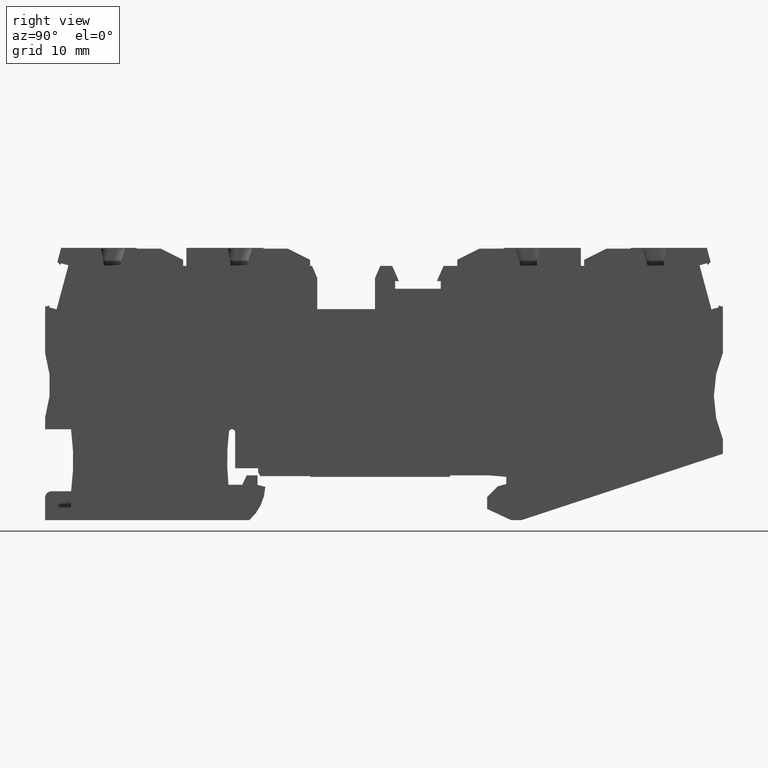
[diagram: clean part render]
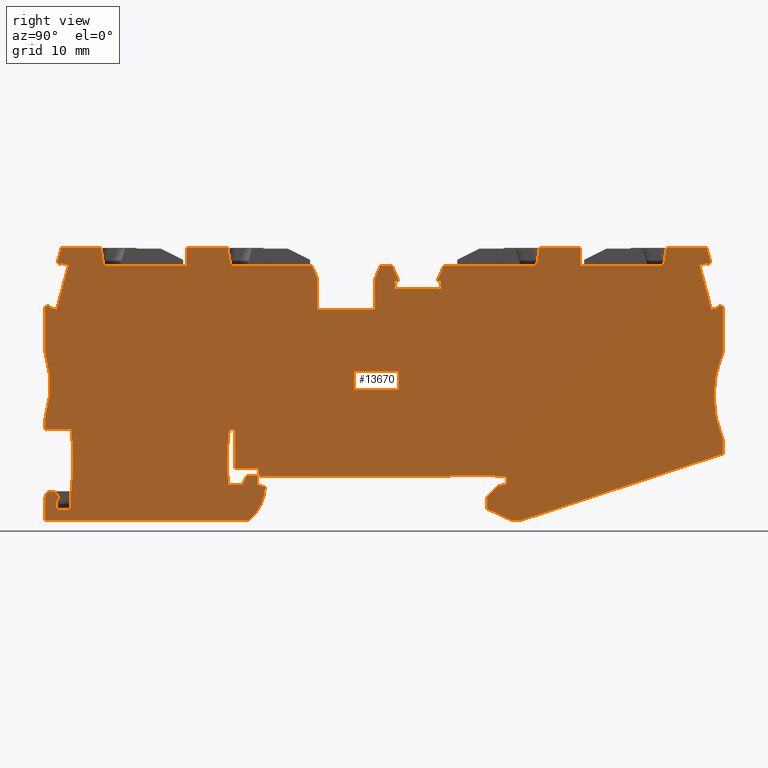
[diagram: same view with one face highlighted and labeled with its STEP entity id]
A machine part, right view. The second image highlights one B-rep face of the part: STEP entity #13670.
In plain terms, the highlighted planar face has unit normal (-1, -0, -0).
Its self-contained STEP definition (entity closure, byte-faithful):
#6800=CARTESIAN_POINT('',(45.521614229368,35.7907180576741,
6.68156854702083E-11));
#6810=DIRECTION('',(-4.80354817885423E-13,-1.17135291806246E-13,-1.));
#6820=DIRECTION('',(-0.992546151641485,-0.121869343403826,
4.91049527016466E-13));
#6830=AXIS2_PLACEMENT_3D('',#6800,#6810,#6820);
#6840=PLANE('',#6830);
#6850=CARTESIAN_POINT('',(51.1299785650664,1.55090701545296E-12,
6.83177050731461E-11));
#6860=DIRECTION('',(-0.121869343405148,0.992546151641322,
-5.77640933191103E-14));
#6870=VECTOR('',#6860,1.);
#6880=LINE('',#6850,#6870);
#6890=CARTESIAN_POINT('',(50.93354378688,1.59983288405392,
6.82245981724176E-11));
#6900=VERTEX_POINT('',#6890);
#6910=CARTESIAN_POINT('',(50.732074768668,3.24066636287605,
6.812910512352E-11));
#6920=VERTEX_POINT('',#6910);
#6930=EDGE_CURVE('',#6900,#6920,#6880,.T.);
#6940=ORIENTED_EDGE('',*,*,#6930,.F.);
#6950=CARTESIAN_POINT('',(48.2001887190505,1.66113356934495E-12,
6.97240957088467E-11));
#6960=DIRECTION('',(0.615661475325658,0.788010753606723,
-3.87844579519291E-13));
#6970=VECTOR('',#6960,1.);
#6980=LINE('',#6950,#6970);
#6990=CARTESIAN_POINT('',(52.0264251236404,4.89735926884905,
6.73137044322209E-11));
#7000=VERTEX_POINT('',#6990);
#7010=EDGE_CURVE('',#6920,#7000,#6980,.T.);
#7020=ORIENTED_EDGE('',*,*,#7010,.F.);
#7030=CARTESIAN_POINT('',(-3.04906916336963E-12,-16.1226809175486,
9.47502267218256E-11));
#7040=DIRECTION('',(0.927183854566809,0.374606593415861,
-4.88979768059962E-13));
#7050=VECTOR('',#7040,1.);
#7060=LINE('',#7030,#7050);
#7070=CARTESIAN_POINT('',(53.1431602927883,5.34854956449718,
6.67234981868649E-11));
#7080=VERTEX_POINT('',#7070);
#7090=EDGE_CURVE('',#7000,#7080,#7060,.T.);
#7100=ORIENTED_EDGE('',*,*,#7090,.F.);
#7110=CARTESIAN_POINT('',(53.7998796025323,1.45045817575454E-12,
6.7036069182966E-11));
#7120=DIRECTION('',(-0.121869343405148,0.992546151641322,
-5.77640933191103E-14));
#7130=VECTOR('',#7120,1.);
#7140=LINE('',#7110,#7130);
#7150=CARTESIAN_POINT('',(53.0212909493831,6.34109571613849,
6.66670307819943E-11));
#7160=VERTEX_POINT('',#7150);
#7170=EDGE_CURVE('',#7080,#7160,#7140,.T.);
#7180=ORIENTED_EDGE('',*,*,#7170,.F.);
#7190=CARTESIAN_POINT('',(-2.27358168479702E-12,4.4895514367401,
9.23358068702275E-11));
#7200=DIRECTION('',(-0.999390827019096,-0.0348994967025011,
4.83825773291268E-13));
#7210=VECTOR('',#7200,1.);
#7220=LINE('',#7190,#7210);
#7230=CARTESIAN_POINT('',(50.7279461954695,6.26101035262196,
6.77772901223321E-11));
#7240=VERTEX_POINT('',#7230);
#7250=EDGE_CURVE('',#7160,#7240,#7220,.T.);
#7260=ORIENTED_EDGE('',*,*,#7250,.F.);
#7270=CARTESIAN_POINT('',(-2.44127161328522E-12,0.0324017535047625,
9.28578963989975E-11));
#7280=DIRECTION('',(-0.992546151641322,-0.121869343405148,
4.9072870296802E-13));
#7290=VECTOR('',#7280,1.);
#7300=LINE('',#7270,#7290);
#7310=CARTESIAN_POINT('',(45.2550570978998,5.58902406790657,
7.04831620090312E-11));
#7320=VERTEX_POINT('',#7310);
#7330=EDGE_CURVE('',#7240,#7320,#7300,.T.);
#7340=ORIENTED_EDGE('',*,*,#7330,.F.);
#7350=CARTESIAN_POINT('',(45.279430966581,5.39051483757716,
7.04949018775302E-11));
#7360=DIRECTION('',(-0.121869343405148,0.992546151641322,
-5.77610917789631E-14));
#7370=VECTOR('',#7360,1.);
#7380=LINE('',#7350,#7370);
#7390=CARTESIAN_POINT('',(45.279430966581,5.39051483757716,
7.0494715267022E-11));
#7400=VERTEX_POINT('',#7390);
#7410=EDGE_CURVE('',#7400,#7320,#7380,.T.);
#7420=ORIENTED_EDGE('',*,*,#7410,.T.);
#7430=CARTESIAN_POINT('',(26.0240356247399,3.02624957551737,
8.00150319696711E-11));
#7440=DIRECTION('',(0.992546151641322,0.121869343405148,
-4.90728355265008E-13));
#7450=VECTOR('',#7440,1.);
#7460=LINE('',#7430,#7450);
#7470=CARTESIAN_POINT('',(26.0240356247399,3.02624957551737,
8.00148521046013E-11));
#7480=VERTEX_POINT('',#7470);
#7490=EDGE_CURVE('',#7480,#7400,#7460,.T.);
#7500=ORIENTED_EDGE('',*,*,#7490,.T.);
#7510=CARTESIAN_POINT('',(25.9996617560588,3.22475880584678,
8.00034797513152E-11));
#7520=DIRECTION('',(0.121869343405148,-0.992546151641322,
5.77610917789631E-14));
#7530=VECTOR('',#7520,1.);
#7540=LINE('',#7510,#7530);
#7550=CARTESIAN_POINT('',(26.0118486903992,3.12550419068349,
8.00090756602341E-11));
#7560=VERTEX_POINT('',#7550);
#7570=EDGE_CURVE('',#7560,#7480,#7540,.T.);
#7580=ORIENTED_EDGE('',*,*,#7570,.T.);
#7590=CARTESIAN_POINT('',(-2.44506213553791E-12,-0.0683492290388294,
9.28696978947375E-11));
#7600=DIRECTION('',(-0.992546151641329,-0.121869343405094,
4.90721764074116E-13));
#7610=VECTOR('',#7600,1.);
#7620=LINE('',#7590,#7610);
#7630=CARTESIAN_POINT('',(19.1632802440735,2.28460572118828,
8.33952380207367E-11));
#7640=VERTEX_POINT('',#7630);
#7650=EDGE_CURVE('',#7560,#7640,#7620,.T.);
#7660=ORIENTED_EDGE('',*,*,#7650,.F.);
#7670=CARTESIAN_POINT('',(20.8848541381608,2.68880973640947E-12,
8.28363094800264E-11));
#7680=DIRECTION('',(-0.601815023152031,0.798635510047307,
1.95356285934724E-13));
#7690=VECTOR('',#7680,1.);
#7700=LINE('',#7670,#7690);
#7710=CARTESIAN_POINT('',(18.8021912301823,2.76378702721663,
8.35123073683059E-11));
#7720=VERTEX_POINT('',#7710);
#7730=EDGE_CURVE('',#7640,#7720,#7700,.T.);
#7740=ORIENTED_EDGE('',*,*,#7730,.F.);
#7750=CARTESIAN_POINT('',(19.1415416067478,2.75439783070766E-12,
8.36731539460596E-11));
#7760=DIRECTION('',(-0.121869343405125,0.992546151641325,
-5.77640933191097E-14));
#7770=VECTOR('',#7760,1.);
#7780=LINE('',#7750,#7770);
#7790=CARTESIAN_POINT('',(18.7314601208357,3.33984568496959,
8.34787819689996E-11));
#7800=VERTEX_POINT('',#7790);
#7810=EDGE_CURVE('',#7720,#7800,#7780,.T.);
#7820=ORIENTED_EDGE('',*,*,#7810,.F.);
#7830=CARTESIAN_POINT('',(-2.40336639075756E-12,1.0399115789622,
9.27398814415948E-11));
#7840=DIRECTION('',(-0.992546151641322,-0.121869343405148,
4.9072870296802E-13));
#7850=VECTOR('',#7840,1.);
#7860=LINE('',#7830,#7850);
#7870=CARTESIAN_POINT('',(15.5553124355817,2.94986378607288,
8.50491173565662E-11));
#7880=VERTEX_POINT('',#7870);
#7890=EDGE_CURVE('',#7800,#7880,#7860,.T.);
#7900=ORIENTED_EDGE('',*,*,#7890,.F.);
#7910=CARTESIAN_POINT('',(15.9175101652776,2.87569454279639E-12,
8.52207897379762E-11));
#7920=DIRECTION('',(-0.121869343405148,0.992546151641322,
-5.77640933191103E-14));
#7930=VECTOR('',#7920,1.);
#7940=LINE('',#7910,#7930);
#7950=CARTESIAN_POINT('',(14.9459657185565,7.91259454427462,
8.47509459294817E-11));
#7960=VERTEX_POINT('',#7950);
#7970=EDGE_CURVE('',#7880,#7960,#7940,.T.);
#7980=ORIENTED_EDGE('',*,*,#7970,.F.);
#7990=CARTESIAN_POINT('',(14.5489472579,7.86384680691253,
8.49570799771339E-11));
#8000=DIRECTION('',(-5.11484905320667E-13,-6.28767212301405E-14,-1.));
#8010=DIRECTION('',(-1.,-2.08166817118832E-16,5.11484905320753E-13));
#8020=AXIS2_PLACEMENT_3D('',#7990,#8000,#8010);
#8030=CIRCLE('',#8020,0.4);
#8040=CARTESIAN_POINT('',(14.500199520538,8.26086526756894,
8.49334991726871E-11));
#8050=VERTEX_POINT('',#8040);
#8060=EDGE_CURVE('',#8050,#7960,#8030,.T.);
#8070=ORIENTED_EDGE('',*,*,#8060,.T.);
#8080=CARTESIAN_POINT('',(-2.19867818910811E-12,6.4804646364349,
9.21026006716203E-11));
#8090=DIRECTION('',(-0.992546151641322,-0.121869343405148,
4.9072870296802E-13));
#8100=VECTOR('',#8090,1.);
#8110=LINE('',#8080,#8100);
#8120=CARTESIAN_POINT('',(14.4509119909992,8.25481351989666,
8.49806809172556E-11));
#8130=VERTEX_POINT('',#8120);
#8140=EDGE_CURVE('',#8050,#8130,#8110,.T.);
#8150=ORIENTED_EDGE('',*,*,#8140,.F.);
#8160=CARTESIAN_POINT('',(14.4996597283612,7.85779505924013,
8.49807104045003E-11));
#8170=DIRECTION('',(5.11484905320667E-13,6.28767212301405E-14,1.));
#8180=DIRECTION('',(1.,2.08166817118832E-16,-5.11484905320753E-13));
#8190=AXIS2_PLACEMENT_3D('',#8160,#8170,#8180);
#8200=CIRCLE('',#8190,0.4);
#8210=CARTESIAN_POINT('',(14.0996636237191,7.85956035557312,
8.51851913781664E-11));
#8220=VERTEX_POINT('',#8210);
#8230=EDGE_CURVE('',#8130,#8220,#8200,.T.);
#8240=ORIENTED_EDGE('',*,*,#8230,.F.);
#8250=CARTESIAN_POINT('',(45.7868550382925,7.71971578669401,
6.99782859232668E-11));
#8260=DIRECTION('',(5.11484905320667E-13,6.28767212301405E-14,1.));
#8270=DIRECTION('',(0.992546151641322,0.121869343405148,
-5.15335119130525E-13));
#8280=AXIS2_PLACEMENT_3D('',#8250,#8260,#8270);
#8290=CIRCLE('',#8280,31.6874999999566);
#8300=CARTESIAN_POINT('',(14.9200659632053,0.554592728341579,
8.56347308077918E-11));
#8310=VERTEX_POINT('',#8300);
#8320=EDGE_CURVE('',#8220,#8310,#8290,.T.);
#8330=ORIENTED_EDGE('',*,*,#8320,.F.);
#8340=CARTESIAN_POINT('',(-2.49054840257132E-12,-1.27736101959366,
9.30113158436213E-11));
#8350=DIRECTION('',(0.992546151641319,0.121869343405174,
-4.90721764074116E-13));
#8360=VECTOR('',#8350,1.);
#8370=LINE('',#8340,#8360);
#8380=CARTESIAN_POINT('',(16.8281580770549,0.788876980702949,
8.46913567122137E-11));
#8390=VERTEX_POINT('',#8380);
#8400=EDGE_CURVE('',#8310,#8390,#8370,.T.);
#8410=ORIENTED_EDGE('',*,*,#8400,.F.);
#8420=CARTESIAN_POINT('',(16.5752548948046,2.8509484215089E-12,
8.49050517236794E-11));
#8430=DIRECTION('',(0.305282167327245,0.952261937867928,
-2.58091037603021E-13));
#8440=VECTOR('',#8430,1.);
#8450=LINE('',#8420,#8440);
#8460=CARTESIAN_POINT('',(17.2652556216151,2.15230858387961,
8.43217126931408E-11));
#8470=VERTEX_POINT('',#8460);
#8480=EDGE_CURVE('',#8390,#8470,#8450,.T.);
#8490=ORIENTED_EDGE('',*,*,#8480,.F.);
#8500=CARTESIAN_POINT('',(-2.44127161328531E-12,0.0324017535024244,
9.28578963989977E-11));
#8510=DIRECTION('',(0.992546151641319,0.121869343405174,
-4.90721764074116E-13));
#8520=VECTOR('',#8510,1.);
#8530=LINE('',#8500,#8520);
#8540=CARTESIAN_POINT('',(18.7540748490771,2.33511259898737,
8.35856189346993E-11));
#8550=VERTEX_POINT('',#8540);
#8560=EDGE_CURVE('',#8470,#8550,#8530,.T.);
#8570=ORIENTED_EDGE('',*,*,#8560,.F.);
#8580=CARTESIAN_POINT('',(19.0407906242024,2.75818835296042E-12,
8.37215175645568E-11));
#8590=DIRECTION('',(0.121869343405174,-0.992546151641319,
5.77640933191109E-14));
#8600=VECTOR('',#8590,1.);
#8610=LINE('',#8580,#8600);
#8620=CARTESIAN_POINT('',(18.9125049955038,1.04480260185427,
8.36607122560141E-11));
#8630=VERTEX_POINT('',#8620);
#8640=EDGE_CURVE('',#8550,#8630,#8610,.T.);
#8650=ORIENTED_EDGE('',*,*,#8640,.F.);
#8660=CARTESIAN_POINT('',(-2.30318206772121E-12,3.70278184023754,
9.24279653564981E-11));
#8670=DIRECTION('',(0.990268068741559,-0.139173100960152,
-4.59066600098781E-13));
#8680=VECTOR('',#8670,1.);
#8690=LINE('',#8660,#8680);
#8700=CARTESIAN_POINT('',(20.040226033671,0.886311745838699,
8.29560817931554E-11));
#8710=VERTEX_POINT('',#8700);
#8720=EDGE_CURVE('',#8630,#8710,#8690,.T.);
#8730=ORIENTED_EDGE('',*,*,#8720,.F.);
#8740=CARTESIAN_POINT('',(13.4567200165409,0.419997986218426,
8.63527660252752E-11));
#8750=DIRECTION('',(5.11484905320667E-13,6.28767212301405E-14,1.));
#8760=DIRECTION('',(1.,2.08166817118832E-16,-5.11484905320753E-13));
#8770=AXIS2_PLACEMENT_3D('',#8740,#8750,#8760);
#8780=CIRCLE('',#8770,6.6);
#8790=CARTESIAN_POINT('',(18.398189321048,-3.95514556715375,
8.41003737474612E-11));
#8800=VERTEX_POINT('',#8790);
#8810=EDGE_CURVE('',#8800,#8710,#8780,.T.);
#8820=ORIENTED_EDGE('',*,*,#8810,.T.);
#8830=CARTESIAN_POINT('',(-2.67628399295771E-12,-6.21415916435811,
9.35895891348969E-11));
#8840=DIRECTION('',(-0.992546151641253,-0.121869343405714,
4.90721764074116E-13));
#8850=VECTOR('',#8840,1.);
#8860=LINE('',#8830,#8850);
#8870=CARTESIAN_POINT('',(-9.72081938764651,-7.40772570449203,
9.83957172294179E-11));
#8880=VERTEX_POINT('',#8870);
#8890=EDGE_CURVE('',#8800,#8880,#8860,.T.);
#8900=ORIENTED_EDGE('',*,*,#8890,.F.);
#8910=CARTESIAN_POINT('',(-10.6303737355595,3.87449715640134E-12,
9.79646032120302E-11));
#8920=DIRECTION('',(-0.121869343404785,0.992546151641367,
-5.77640933191012E-14));
#8930=VECTOR('',#8920,1.);
#8940=LINE('',#8910,#8930);
#8950=CARTESIAN_POINT('',(-10.0986143522041,-4.33083263438116,
9.82166485401274E-11));
#8960=VERTEX_POINT('',#8950);
#8970=EDGE_CURVE('',#8880,#8960,#8940,.T.);
#8980=ORIENTED_EDGE('',*,*,#8970,.F.);
#8990=CARTESIAN_POINT('',(-9.20532281572712,-4.2211502253165,
-4.75520989127007E-12));
#9000=DIRECTION('',(5.11484905320667E-13,6.28767212301405E-14,1.));
#9010=DIRECTION('',(0.992546151641322,0.121869343405148,
-5.15335119130525E-13));
#9020=AXIS2_PLACEMENT_3D('',#8990,#9000,#9010);
#9030=CIRCLE('',#9020,0.899999999999821);
#9040=CARTESIAN_POINT('',(-8.52804268387466,-4.81384881903644,
9.74660670806273E-11));
#9050=VERTEX_POINT('',#9040);
#9060=EDGE_CURVE('',#9050,#8960,#9030,.T.);
#9070=ORIENTED_EDGE('',*,*,#9060,.T.);
#9080=CARTESIAN_POINT('',(-9.11910899737338,3.81763932260986E-12,
9.72391489345708E-11));
#9090=DIRECTION('',(0.121869343405115,-0.992546151641326,
5.77640933191095E-14));
#9100=VECTOR('',#9090,1.);
#9110=LINE('',#9080,#9100);
#9120=CARTESIAN_POINT('',(-8.41480417529468,-5.73610246189973,
9.75729636051133E-11));
#9130=VERTEX_POINT('',#9120);
#9140=EDGE_CURVE('',#9050,#9130,#9110,.T.);
#9150=ORIENTED_EDGE('',*,*,#9140,.F.);
#9160=CARTESIAN_POINT('',(-2.61942615916549E-12,-4.70289442615256,
9.34125666987907E-11));
#9170=DIRECTION('',(0.992546151641322,0.121869343405148,
-4.9072870296802E-13));
#9180=VECTOR('',#9170,1.);
#9190=LINE('',#9160,#9180);
#9200=CARTESIAN_POINT('',(-6.33045725684788,-5.48017684074892,
9.65424333288805E-11));
#9210=VERTEX_POINT('',#9200);
#9220=EDGE_CURVE('',#9130,#9210,#9190,.T.);
#9230=ORIENTED_EDGE('',*,*,#9220,.F.);
#9240=CARTESIAN_POINT('',(-7.00333836390997,3.73803835530168E-12,
9.62235129461262E-11));
#9250=DIRECTION('',(-0.121869343405148,0.992546151641322,
-5.77640933191103E-14));
#9260=VECTOR('',#9250,1.);
#9270=LINE('',#9240,#9260);
#9280=CARTESIAN_POINT('',(-6.62294368102031,-3.09806607680903,
9.53806876827917E-11));
#9290=VERTEX_POINT('',#9280);
#9300=EDGE_CURVE('',#9210,#9290,#9270,.T.);
#9310=ORIENTED_EDGE('',*,*,#9300,.F.);
#9320=CARTESIAN_POINT('',(-38.3066176594313,-2.60566433329596,
1.11555448060693E-10));
#9330=DIRECTION('',(5.11484905320667E-13,6.28767212301405E-14,1.));
#9340=DIRECTION('',(0.992546151641322,0.121869343405148,
-5.15335119130525E-13));
#9350=AXIS2_PLACEMENT_3D('',#9320,#9330,#9340);
#9360=CIRCLE('',#9350,31.6874999999566);
#9370=CARTESIAN_POINT('',(-7.68320696864437,5.5370854424646,
9.53800463352198E-11));
#9380=VERTEX_POINT('',#9370);
#9390=EDGE_CURVE('',#9290,#9380,#9360,.T.);
#9400=ORIENTED_EDGE('',*,*,#9390,.F.);
#9410=CARTESIAN_POINT('',(-2.19867818910809E-12,6.48046463643548,
9.21026006716202E-11));
#9420=DIRECTION('',(-0.992546151641322,-0.121869343405148,
4.9072870296802E-13));
#9430=VECTOR('',#9420,1.);
#9440=LINE('',#9410,#9430);
#9450=CARTESIAN_POINT('',(-11.2563731145709,5.0983558062039,
9.76678896536061E-11));
#9460=VERTEX_POINT('',#9450);
#9470=EDGE_CURVE('',#9380,#9460,#9440,.T.);
#9480=ORIENTED_EDGE('',*,*,#9470,.F.);
#9490=CARTESIAN_POINT('',(-10.6303737355799,3.87449715640211E-12,
9.796460321204E-11));
#9500=DIRECTION('',(-0.121869343405148,0.992546151641322,
-5.77640933191103E-14));
#9510=VECTOR('',#9500,1.);
#9520=LINE('',#9490,#9510);
#9530=CARTESIAN_POINT('',(-11.4513640640204,6.68642964884028,
9.75754671042949E-11));
#9540=VERTEX_POINT('',#9530);
#9550=EDGE_CURVE('',#9460,#9540,#9520,.T.);
#9560=ORIENTED_EDGE('',*,*,#9550,.F.);
#9570=CARTESIAN_POINT('',(-26.2022063583377,9.4090481693425,
1.04337258896055E-10));
#9580=DIRECTION('',(-2.48736047506293E-14,-2.91886266429657E-15,1.));
#9590=DIRECTION('',(-0.992546151641323,-0.121869343405144,
-2.50439205489866E-14));
#9600=AXIS2_PLACEMENT_3D('',#9570,#9580,#9590);
#9610=CIRCLE('',#9600,15.);
#9620=CARTESIAN_POINT('',(-12.5481881546689,15.6193450136094,
9.70556994593247E-11));
#9630=VERTEX_POINT('',#9620);
#9640=EDGE_CURVE('',#9540,#9630,#9610,.T.);
#9650=ORIENTED_EDGE('',*,*,#9640,.F.);
#9660=CARTESIAN_POINT('',(-10.3670130763944,-2.14490044392814,
-6.23862340092619E-11));
#9670=DIRECTION('',(0.12186934340511,-0.992546151641327,
1.2671346232575E-16));
#9680=VECTOR('',#9670,1.);
#9690=LINE('',#9660,#9680);
#9700=CARTESIAN_POINT('',(-13.3281422848194,21.971561647487,
9.66860582527586E-11));
#9710=VERTEX_POINT('',#9700);
#9720=EDGE_CURVE('',#9710,#9630,#9690,.T.);
#9730=ORIENTED_EDGE('',*,*,#9720,.T.);
#9740=CARTESIAN_POINT('',(-17.4688122688888,20.2986223814294,
-6.24971786231989E-11));
#9750=DIRECTION('',(0.927183854569503,0.374606593409191,
2.41534375207176E-14));
#9760=VECTOR('',#9750,1.);
#9770=LINE('',#9740,#9760);
#9780=CARTESIAN_POINT('',(-12.7148639936337,22.2193421608562,
9.63627884140387E-11));
#9790=VERTEX_POINT('',#9780);
#9800=EDGE_CURVE('',#9710,#9790,#9770,.T.);
#9810=ORIENTED_EDGE('',*,*,#9800,.F.);
#9820=CARTESIAN_POINT('',(-16.1390349862198,-2.14490044392793,
-6.25297739988785E-11));
#9830=DIRECTION('',(-0.13917310096079,-0.990268068741469,
-6.3582858958012E-15));
#9840=VECTOR('',#9830,1.);
#9850=LINE('',#9820,#9840);
#9860=CARTESIAN_POINT('',(-12.752761889682,21.9496846187737,
9.64125641641011E-11));
#9870=VERTEX_POINT('',#9860);
#9880=EDGE_CURVE('',#9790,#9870,#9850,.T.);
#9890=ORIENTED_EDGE('',*,*,#9880,.F.);
#9900=CARTESIAN_POINT('',(-17.4688122688887,22.6124822755671,
-6.24904088011198E-11));
#9910=DIRECTION('',(0.990268068741538,-0.139173100960301,
2.42190292353103E-14));
#9920=VECTOR('',#9910,1.);
#9930=LINE('',#9900,#9920);
#9940=CARTESIAN_POINT('',(-11.6931750561293,21.8007694007463,
9.59213710485714E-11));
#9950=VERTEX_POINT('',#9940);
#9960=EDGE_CURVE('',#9870,#9950,#9930,.T.);
#9970=ORIENTED_EDGE('',*,*,#9960,.F.);
#9980=CARTESIAN_POINT('',(-15.0585194836129,-2.14490044392797,
-6.25029034868729E-11));
#9990=DIRECTION('',(-0.139173100960276,-0.990268068741541,
-6.35828589578859E-15));
#10000=VECTOR('',#9990,1.);
#10010=LINE('',#9980,#10000);
#10020=CARTESIAN_POINT('',(-10.8129051925556,28.0642149355368,
9.47652094331326E-11));
#10030=VERTEX_POINT('',#10020);
#10040=EDGE_CURVE('',#10030,#9950,#10010,.T.);
#10050=ORIENTED_EDGE('',*,*,#10040,.T.);
#10060=CARTESIAN_POINT('',(-17.4688122688885,28.9996416717454,
-6.24717214411754E-11));
#10070=DIRECTION('',(-0.990268068741586,0.139173100959957,
-2.42190292353126E-14));
#10080=VECTOR('',#10070,1.);
#10090=LINE('',#10060,#10080);
#10100=CARTESIAN_POINT('',(-11.8724920261092,28.213130153564,
9.52564025486461E-11));
#10110=VERTEX_POINT('',#10100);
#10120=EDGE_CURVE('',#10030,#10110,#10090,.T.);
#10130=ORIENTED_EDGE('',*,*,#10120,.F.);
#10140=CARTESIAN_POINT('',(-16.1390349861828,-2.14490044392793,
-6.25297739988776E-11));
#10150=DIRECTION('',(-0.139173100959469,-0.990268068741655,
-6.35828589576885E-15));
#10160=VECTOR('',#10150,1.);
#10170=LINE('',#10140,#10160);
#10180=CARTESIAN_POINT('',(-11.9103899221575,27.9434726114791,
9.53059683943045E-11));
#10190=VERTEX_POINT('',#10180);
#10200=EDGE_CURVE('',#10110,#10190,#10170,.T.);
#10210=ORIENTED_EDGE('',*,*,#10200,.F.);
#10220=CARTESIAN_POINT('',(-17.4688122688883,32.2861880970218,
-6.24621057619331E-11));
#10230=DIRECTION('',(0.78801075360754,-0.615661475324612,
1.77951516249098E-14));
#10240=VECTOR('',#10230,1.);
#10250=LINE('',#10220,#10240);
#10260=CARTESIAN_POINT('',(-12.3926456361201,28.3202520690979,
9.54935458988581E-11));
#10270=VERTEX_POINT('',#10260);
#10280=EDGE_CURVE('',#10270,#10190,#10250,.T.);
#10290=ORIENTED_EDGE('',*,*,#10280,.T.);
#10300=CARTESIAN_POINT('',(-16.6742435996499,-2.14490044392791,
-6.25430836917409E-11));
#10310=DIRECTION('',(-0.139173100960494,-0.990268068741511,
-6.35828589579393E-15));
#10320=VECTOR('',#10310,1.);
#10330=LINE('',#10300,#10320);
#10340=CARTESIAN_POINT('',(-12.1098519226199,30.3324338958117,
9.51218046987962E-11));
#10350=VERTEX_POINT('',#10340);
#10360=EDGE_CURVE('',#10350,#10270,#10330,.T.);
#10370=ORIENTED_EDGE('',*,*,#10360,.T.);
#10380=CARTESIAN_POINT('',(-17.4688122688884,29.6744363027993,
-6.24695251026196E-11));
#10390=DIRECTION('',(-0.992546151641327,-0.12186934340511,
-2.50394313100733E-14));
#10400=VECTOR('',#10390,1.);
#10410=LINE('',#10380,#10400);
#10420=CARTESIAN_POINT('',(-6.61390145917418,31.0072517602099,
9.240463543848E-11));
#10430=VERTEX_POINT('',#10420);
#10440=EDGE_CURVE('',#10430,#10350,#10410,.T.);
#10450=ORIENTED_EDGE('',*,*,#10440,.T.);
#10460=CARTESIAN_POINT('',(2.66133166147859,-2.14490044392863,
-6.20620200433489E-11));
#10470=DIRECTION('',(0.269431410275815,-0.96301958191762,
3.88270937713592E-15));
#10480=VECTOR('',#10470,1.);
#10490=LINE('',#10460,#10480);
#10500=CARTESIAN_POINT('',(-5.93260852348172,28.5721294505195,
9.23627265369063E-11));
#10510=VERTEX_POINT('',#10500);
#10520=EDGE_CURVE('',#10430,#10510,#10490,.T.);
#10530=ORIENTED_EDGE('',*,*,#10520,.F.);
#10540=CARTESIAN_POINT('',(-1.34012489885523E-12,29.3005621830836,
8.94295618864462E-11));
#10550=DIRECTION('',(0.992546151641327,0.12186934340511,
-4.9072870296802E-13));
#10560=VECTOR('',#10550,1.);
#10570=LINE('',#10540,#10560);
#10580=CARTESIAN_POINT('',(5.43719083080263,29.968165271789,
8.67412499526372E-11));
#10590=VERTEX_POINT('',#10580);
#10600=EDGE_CURVE('',#10510,#10590,#10570,.T.);
#10610=ORIENTED_EDGE('',*,*,#10600,.F.);
#10620=CARTESIAN_POINT('',(9.11681884476455,3.13155479480822E-12,
8.84853339859079E-11));
#10630=DIRECTION('',(0.121869343405148,-0.992546151641322,
5.77640933191103E-14));
#10640=VECTOR('',#10630,1.);
#10650=LINE('',#10620,#10640);
#10660=CARTESIAN_POINT('',(5.13251747228987,32.4495306508914,
8.65969360513609E-11));
#10670=VERTEX_POINT('',#10660);
#10680=EDGE_CURVE('',#10670,#10590,#10650,.T.);
#10690=ORIENTED_EDGE('',*,*,#10680,.T.);
#10700=CARTESIAN_POINT('',(-1.24536184253599E-12,31.8193367467299,
8.91345244929393E-11));
#10710=DIRECTION('',(-0.992546151641327,-0.12186934340511,
4.9072870296802E-13));
#10720=VECTOR('',#10710,1.);
#10730=LINE('',#10700,#10720);
#10740=CARTESIAN_POINT('',(10.8549108097131,33.1521522041404,
8.37677047297717E-11));
#10750=VERTEX_POINT('',#10740);
#10760=EDGE_CURVE('',#10750,#10670,#10730,.T.);
#10770=ORIENTED_EDGE('',*,*,#10760,.T.);
#10780=CARTESIAN_POINT('',(20.1301439303659,1.96864872753817E-12,
-7.06895637511002E-11));
#10790=DIRECTION('',(0.269431410275815,-0.96301958191762,
3.88270937713592E-15));
#10800=VECTOR('',#10790,1.);
#10810=LINE('',#10780,#10800);
#10820=CARTESIAN_POINT('',(11.5362037454055,30.7170298944502,
8.37260122498929E-11));
#10830=VERTEX_POINT('',#10820);
#10840=EDGE_CURVE('',#10750,#10830,#10810,.T.);
#10850=ORIENTED_EDGE('',*,*,#10840,.F.);
#10860=CARTESIAN_POINT('',(-1.26037069472658E-12,29.3005621830843,
-7.11044381656617E-11));
#10870=DIRECTION('',(0.992546151641327,0.12186934340511,
2.50394313100733E-14));
#10880=VECTOR('',#10870,1.);
#10890=LINE('',#10860,#10880);
#10900=CARTESIAN_POINT('',(22.7387593504494,32.0925307654053,
7.81872011511833E-11));
#10910=VERTEX_POINT('',#10900);
#10920=EDGE_CURVE('',#10830,#10910,#10890,.T.);
#10930=ORIENTED_EDGE('',*,*,#10920,.F.);
#10940=CARTESIAN_POINT('',(41.2011308712341,1.17794860149569E-12,
-7.01655655241434E-11));
#10950=DIRECTION('',(0.498657173381242,-0.866799298243504,
9.86466764618313E-15));
#10960=VECTOR('',#10950,1.);
#10970=LINE('',#10940,#10960);
#10980=CARTESIAN_POINT('',(23.6590813655665,30.4927653966404,
7.79327225748184E-11));
#10990=VERTEX_POINT('',#10980);
#11000=EDGE_CURVE('',#10910,#10990,#10970,.T.);
#11010=ORIENTED_EDGE('',*,*,#11000,.F.);
#11020=CARTESIAN_POINT('',(27.4031221755078,1.69572630433719E-12,
-7.05089196732096E-11));
#11030=DIRECTION('',(-0.121869343405139,0.992546151641324,
-1.26713462326487E-16));
#11040=VECTOR('',#11030,1.);
#11050=LINE('',#11020,#11040);
#11060=CARTESIAN_POINT('',(24.1831195422084,26.2248169445842,
7.81811081760905E-11));
#11070=VERTEX_POINT('',#11060);
#11080=EDGE_CURVE('',#11070,#10990,#11050,.T.);
#11090=ORIENTED_EDGE('',*,*,#11080,.T.);
#11100=CARTESIAN_POINT('',(-1.50142564029018E-12,23.2555032303317,
-7.11203482615204E-11));
#11110=DIRECTION('',(-0.992546151641324,-0.121869343405136,
-2.50403622964061E-14));
#11120=VECTOR('',#11110,1.);
#11130=LINE('',#11100,#11120);
#11140=CARTESIAN_POINT('',(32.1234887553388,27.1997716918252,
7.42552783856282E-11));
#11150=VERTEX_POINT('',#11140);
#11160=EDGE_CURVE('',#11150,#11070,#11130,.T.);
#11170=ORIENTED_EDGE('',*,*,#11160,.T.);
#11180=CARTESIAN_POINT('',(35.4632007791785,1.38616208918197E-12,
-7.030648135363E-11));
#11190=DIRECTION('',(0.121869343405142,-0.992546151641324,
1.25369758141894E-16));
#11200=VECTOR('',#11190,1.);
#11210=LINE('',#11180,#11200);
#11220=CARTESIAN_POINT('',(31.5994505786969,31.4677201438811,
7.40068927843561E-11));
#11230=VERTEX_POINT('',#11220);
#11240=EDGE_CURVE('',#11230,#11150,#11210,.T.);
#11250=ORIENTED_EDGE('',*,*,#11240,.T.);
#11260=CARTESIAN_POINT('',(22.6289845756428,1.86777296000974E-12,
-7.06256456411836E-11));
#11270=DIRECTION('',(-0.274147194873179,-0.961687743263461,
-9.63283387656871E-15));
#11280=VECTOR('',#11270,1.);
#11290=LINE('',#11260,#11280);
#11300=CARTESIAN_POINT('',(32.1054168262364,33.242611690697,
7.35556797581958E-11));
#11310=VERTEX_POINT('',#11300);
#11320=EDGE_CURVE('',#11310,#11230,#11290,.T.);
#11330=ORIENTED_EDGE('',*,*,#11320,.T.);
#11340=CARTESIAN_POINT('',(-1.28168697679957E-12,29.3005621830791,
-7.11026618088223E-11));
#11350=DIRECTION('',(-0.992546151641309,-0.121869343405257,
-2.50403622964062E-14));
#11360=VECTOR('',#11350,1.);
#11370=LINE('',#11340,#11360);
#11380=CARTESIAN_POINT('',(33.7648010461207,33.4463584535049,
7.27360079337511E-11));
#11390=VERTEX_POINT('',#11380);
#11400=EDGE_CURVE('',#11390,#11310,#11370,.T.);
#11410=ORIENTED_EDGE('',*,*,#11400,.T.);
#11420=CARTESIAN_POINT('',(53.6422195780373,7.0398462421914E-13,
-6.98544012662022E-11));
#11430=DIRECTION('',(0.510892985900211,-0.859644320028911,
1.01890289076771E-14));
#11440=VECTOR('',#11430,1.);
#11450=LINE('',#11420,#11440);
#11460=CARTESIAN_POINT('',(34.9394936524405,31.4697843867785,
7.24036531729968E-11));
#11470=VERTEX_POINT('',#11460);
#11480=EDGE_CURVE('',#11390,#11470,#11450,.T.);
#11490=ORIENTED_EDGE('',*,*,#11480,.F.);
#11500=CARTESIAN_POINT('',(-1.35416601798108E-12,27.179754000494,
-7.11088668059772E-11));
#11510=DIRECTION('',(-0.992546151641324,-0.121869343405136,
-2.50403622964061E-14));
#11520=VECTOR('',#11510,1.);
#11530=LINE('',#11500,#11520);
#11540=CARTESIAN_POINT('',(34.4155300604774,31.4054497472102,
7.26627044400171E-11));
#11550=VERTEX_POINT('',#11540);
#11560=EDGE_CURVE('',#11470,#11550,#11530,.T.);
#11570=ORIENTED_EDGE('',*,*,#11560,.F.);
#11580=CARTESIAN_POINT('',(38.2716344176462,1.28077410530868E-12,
-7.02366405696547E-11));
#11590=DIRECTION('',(0.121869343405136,-0.992546151641324,
1.25369758141743E-16));
#11600=VECTOR('',#11590,1.);
#11610=LINE('',#11580,#11600);
#11620=CARTESIAN_POINT('',(34.5459302579208,30.3434253649544,
7.27241885043869E-11));
#11630=VERTEX_POINT('',#11620);
#11640=EDGE_CURVE('',#11550,#11630,#11610,.T.);
#11650=ORIENTED_EDGE('',*,*,#11640,.F.);
#11660=CARTESIAN_POINT('',(-1.39461988084896E-12,26.1017184872554,
-7.11120208900417E-11));
#11670=DIRECTION('',(0.992546151641331,0.121869343405079,
2.50403622964061E-14));
#11680=VECTOR('',#11670,1.);
#11690=LINE('',#11660,#11680);
#11700=CARTESIAN_POINT('',(40.8237846670523,31.1142489619915,
6.96203293263025E-11));
#11710=VERTEX_POINT('',#11700);
#11720=EDGE_CURVE('',#11630,#11710,#11690,.T.);
#11730=ORIENTED_EDGE('',*,*,#11720,.F.);
#11740=CARTESIAN_POINT('',(44.6441340636736,1.04164262620617E-12,
-7.0078167759379E-11));
#11750=DIRECTION('',(-0.121869343405136,0.992546151641324,
-1.25369758141743E-16));
#11760=VECTOR('',#11750,1.);
#11770=LINE('',#11740,#11760);
#11780=CARTESIAN_POINT('',(40.6933844696088,32.1762733442477,
6.95585217464511E-11));
#11790=VERTEX_POINT('',#11780);
#11800=EDGE_CURVE('',#11710,#11790,#11770,.T.);
#11810=ORIENTED_EDGE('',*,*,#11800,.F.);
#11820=CARTESIAN_POINT('',(-1.35416601798108E-12,27.179754000494,
-7.11088668059772E-11));
#11830=DIRECTION('',(-0.992546151641324,-0.121869343405136,
-2.50403622964061E-14));
#11840=VECTOR('',#11830,1.);
#11850=LINE('',#11820,#11840);
#11860=CARTESIAN_POINT('',(40.1694208776443,32.1119387046792,
6.98179405492692E-11));
#11870=VERTEX_POINT('',#11860);
#11880=EDGE_CURVE('',#11790,#11870,#11850,.T.);
#11890=ORIENTED_EDGE('',*,*,#11880,.F.);
#11900=CARTESIAN_POINT('',(30.5211237682835,1.57161618900142E-12,
-7.04293820795647E-11));
#11910=DIRECTION('',(0.287750497361325,0.957705409438786,
9.95947716779486E-15));
#11920=VECTOR('',#11910,1.);
#11930=LINE('',#11900,#11920);
#11940=CARTESIAN_POINT('',(40.8310435482309,34.3139839363598,
6.92421227350066E-11));
#11950=VERTEX_POINT('',#11940);
#11960=EDGE_CURVE('',#11870,#11950,#11930,.T.);
#11970=ORIENTED_EDGE('',*,*,#11960,.F.);
#11980=CARTESIAN_POINT('',(-1.27458154944178E-12,29.3005621830843,
-7.11026618088223E-11));
#11990=DIRECTION('',(-0.992546151641327,-0.12186934340511,
-2.50403622964061E-14));
#12000=VECTOR('',#11990,1.);
#12010=LINE('',#11980,#12000);
#12020=CARTESIAN_POINT('',(53.6304524096651,35.8855537332273,
6.29100439665823E-11));
#12030=VERTEX_POINT('',#12020);
#12040=EDGE_CURVE('',#12030,#11950,#12010,.T.);
#12050=ORIENTED_EDGE('',*,*,#12040,.T.);
#12060=CARTESIAN_POINT('',(52.7229110755826,4.00188860253601,
-6.98202130538966E-11));
#12070=DIRECTION('',(-0.0284526231580444,-0.99959514216278,
-3.63512319679408E-15));
#12080=VECTOR('',#12070,1.);
#12090=LINE('',#12060,#12080);
#12100=CARTESIAN_POINT('',(53.7023986283322,38.41316218174,
6.25797199374616E-11));
#12110=VERTEX_POINT('',#12100);
#12120=EDGE_CURVE('',#12110,#12030,#12090,.T.);
#12130=ORIENTED_EDGE('',*,*,#12120,.T.);
#12140=CARTESIAN_POINT('',(-0.0992546151653785,31.8071498123857,
8.91842624844429E-11));
#12150=DIRECTION('',(0.99254615164132,0.121869343405168,
-4.90721764074116E-13));
#12160=VECTOR('',#12150,1.);
#12170=LINE('',#12140,#12160);
#12180=CARTESIAN_POINT('',(59.4247919657564,39.1157837349895,
5.97486667486119E-11));
#12190=VERTEX_POINT('',#12180);
#12200=EDGE_CURVE('',#12110,#12190,#12170,.T.);
#12210=ORIENTED_EDGE('',*,*,#12200,.F.);
#12220=CARTESIAN_POINT('',(64.2283544797216,-0.00609346716927355,
6.20645137065402E-11));
#12230=DIRECTION('',(-0.121869343405168,0.99254615164132,
-5.77640933191108E-14));
#12240=VECTOR('',#12230,1.);
#12250=LINE('',#12220,#12240);
#12260=CARTESIAN_POINT('',(59.729465324269,36.6344183558885,
5.98930832739504E-11));
#12270=VERTEX_POINT('',#12260);
#12280=EDGE_CURVE('',#12270,#12190,#12250,.T.);
#12290=ORIENTED_EDGE('',*,*,#12280,.T.);
#12300=CARTESIAN_POINT('',(-0.0992546151654733,29.2883752487444,
8.94792998779493E-11));
#12310=DIRECTION('',(0.992546151641327,0.12186934340511,
-4.9072870296802E-13));
#12320=VECTOR('',#12310,1.);
#12330=LINE('',#12300,#12320);
#12340=CARTESIAN_POINT('',(71.0992646785524,38.0304541771579,
5.4267569515658E-11));
#12350=VERTEX_POINT('',#12340);
#12360=EDGE_CURVE('',#12270,#12350,#12330,.T.);
#12370=ORIENTED_EDGE('',*,*,#12360,.F.);
#12380=CARTESIAN_POINT('',(70.1917233444699,6.14678904646662,
-6.9260290241251E-11));
#12390=DIRECTION('',(-0.0284526231580444,-0.99959514216278,
-3.63512319679408E-15));
#12400=VECTOR('',#12390,1.);
#12410=LINE('',#12380,#12400);
#12420=CARTESIAN_POINT('',(71.1712108972195,40.5580626256707,
5.39369343790589E-11));
#12430=VERTEX_POINT('',#12420);
#12440=EDGE_CURVE('',#12430,#12350,#12410,.T.);
#12450=ORIENTED_EDGE('',*,*,#12440,.T.);
#12460=CARTESIAN_POINT('',(82.1253763220979,41.9030650174223,
-6.89111646531779E-11));
#12470=DIRECTION('',(0.99254615164132,0.121869343405168,
2.50286166997453E-14));
#12480=VECTOR('',#12470,1.);
#12490=LINE('',#12460,#12480);
#12500=CARTESIAN_POINT('',(76.7664159758293,41.2450674244096,
5.11803885361175E-11));
#12510=VERTEX_POINT('',#12500);
#12520=EDGE_CURVE('',#12430,#12510,#12490,.T.);
#12530=ORIENTED_EDGE('',*,*,#12520,.F.);
#12540=CARTESIAN_POINT('',(89.0522040005947,10.8366750004898,
-6.88302024510314E-11));
#12550=DIRECTION('',(0.374606593416298,-0.927183854566633,
6.59579020589816E-15));
#12560=VECTOR('',#12550,1.);
#12570=LINE('',#12540,#12560);
#12580=CARTESIAN_POINT('',(77.5276003492661,39.3610699886925,
5.10352532831657E-11));
#12590=VERTEX_POINT('',#12580);
#12600=EDGE_CURVE('',#12510,#12590,#12570,.T.);
#12610=ORIENTED_EDGE('',*,*,#12600,.F.);
#12620=CARTESIAN_POINT('',(81.4935363772037,44.4372366214501,
-6.89196695501589E-11));
#12630=DIRECTION('',(-0.615661475326719,-0.788010753605894,
-1.76115902885362E-14));
#12640=VECTOR('',#12630,1.);
#12650=LINE('',#12620,#12640);
#12660=CARTESIAN_POINT('',(77.1508208916461,38.8788142747309,
5.12726107858981E-11));
#12670=VERTEX_POINT('',#12660);
#12680=EDGE_CURVE('',#12590,#12670,#12650,.T.);
#12690=ORIENTED_EDGE('',*,*,#12680,.F.);
#12700=CARTESIAN_POINT('',(88.5328933702816,10.7071963181785,
-6.88434901721391E-11));
#12710=DIRECTION('',(0.374606593415338,-0.927183854567021,
6.59579020587315E-15));
#12720=VECTOR('',#12710,1.);
#12730=LINE('',#12700,#12720);
#12740=CARTESIAN_POINT('',(77.0488126613318,39.1312935045226,
5.12935865988079E-11));
#12750=VERTEX_POINT('',#12740);
#12760=EDGE_CURVE('',#12750,#12670,#12730,.T.);
#12770=ORIENTED_EDGE('',*,*,#12760,.T.);
#12780=CARTESIAN_POINT('',(82.2886239183829,41.2483146707968,
-6.89092466688851E-11));
#12790=DIRECTION('',(0.927183854566836,0.374606593415795,
2.41441940387486E-14));
#12800=VECTOR('',#12790,1.);
#12810=LINE('',#12780,#12800);
#12820=CARTESIAN_POINT('',(76.0567259369451,38.7304644495676,
5.18155968251579E-11));
#12830=VERTEX_POINT('',#12820);
#12840=EDGE_CURVE('',#12830,#12750,#12810,.T.);
#12850=ORIENTED_EDGE('',*,*,#12840,.T.);
#12860=CARTESIAN_POINT('',(87.4844737959631,10.445795959572,
-6.88703163260713E-11));
#12870=DIRECTION('',(0.374606593416094,-0.927183854566715,
6.59579020589281E-15));
#12880=VECTOR('',#12870,1.);
#12890=LINE('',#12860,#12880);
#12900=CARTESIAN_POINT('',(78.426112640302,32.8660265694329,
5.13651175449927E-11));
#12910=VERTEX_POINT('',#12900);
#12920=EDGE_CURVE('',#12830,#12910,#12890,.T.);
#12930=ORIENTED_EDGE('',*,*,#12920,.F.);
#12940=CARTESIAN_POINT('',(83.8338176270037,35.0508812056414,
-6.8888990571618E-11));
#12950=DIRECTION('',(-0.927183854566705,-0.374606593416117,
-2.41441940387461E-14));
#12960=VECTOR('',#12950,1.);
#12970=LINE('',#12940,#12960);
#12980=CARTESIAN_POINT('',(79.4181993646876,33.2668556243878,
5.08419359095471E-11));
#12990=VERTEX_POINT('',#12980);
#13000=EDGE_CURVE('',#12990,#12910,#12970,.T.);
#13010=ORIENTED_EDGE('',*,*,#13000,.T.);
#13020=CARTESIAN_POINT('',(88.5328933703174,10.7071963181875,
-6.88434901721382E-11));
#13030=DIRECTION('',(0.374606593416575,-0.927183854566521,
6.59579020590538E-15));
#13040=VECTOR('',#13030,1.);
#13050=LINE('',#13020,#13040);
#13060=CARTESIAN_POINT('',(79.3161911343737,33.5193348541774,
5.08613302085433E-11));
#13070=VERTEX_POINT('',#13060);
#13080=EDGE_CURVE('',#13070,#12990,#13050,.T.);
#13090=ORIENTED_EDGE('',*,*,#13080,.T.);
#13100=CARTESIAN_POINT('',(84.3935909987456,32.8057528391582,
-6.88816524470824E-11));
#13110=DIRECTION('',(-0.990268068742578,0.139173100952904,
-2.42073804944462E-14));
#13120=VECTOR('',#13110,1.);
#13130=LINE('',#13100,#13120);
#13140=CARTESIAN_POINT('',(79.971195970816,33.4272799277346,
5.05578932603881E-11));
#13150=VERTEX_POINT('',#13140);
#13160=EDGE_CURVE('',#13150,#13070,#13130,.T.);
#13170=ORIENTED_EDGE('',*,*,#13160,.T.);
#13180=CARTESIAN_POINT('',(83.8121891997317,2.14490044393083,
-6.89786231045951E-11));
#13190=DIRECTION('',(-0.12186934340511,0.992546151641328,
-1.25369758141076E-16));
#13200=VECTOR('',#13190,1.);
#13210=LINE('',#13180,#13200);
#13220=CARTESIAN_POINT('',(80.7511501013407,27.0750632908097,
4.41842048583439E-11));
#13230=VERTEX_POINT('',#13220);
#13240=EDGE_CURVE('',#13230,#13150,#13210,.T.);
#13250=ORIENTED_EDGE('',*,*,#13240,.T.);
#13260=CARTESIAN_POINT('',(95.1276197746272,22.7952128573162,
4.45273391520407E-11));
#13270=DIRECTION('',(-2.47610274017394E-14,-3.00054079505067E-15,1.));
#13280=DIRECTION('',(0.992546151641327,0.12186934340511,
2.49421363947495E-14));
#13290=AXIS2_PLACEMENT_3D('',#13260,#13270,#13280);
#13300=CIRCLE('',#13290,15.);
#13310=CARTESIAN_POINT('',(82.2135822231573,15.1645094743228,
4.41846780775672E-11));
#13320=VERTEX_POINT('',#13310);
#13330=EDGE_CURVE('',#13230,#13320,#13300,.T.);
#13340=ORIENTED_EDGE('',*,*,#13330,.F.);
#13350=CARTESIAN_POINT('',(84.0755498602693,3.11406238695417E-13,
5.25028018232123E-11));
#13360=DIRECTION('',(-0.12186934340511,0.992546151641327,
-5.77571544252054E-14));
#13370=VECTOR('',#13360,1.);
#13380=LINE('',#13350,#13370);
#13390=CARTESIAN_POINT('',(82.4574372953298,13.1784692883304,
5.17359348271384E-11));
#13400=VERTEX_POINT('',#13390);
#13410=EDGE_CURVE('',#13400,#13320,#13380,.T.);
#13420=ORIENTED_EDGE('',*,*,#13410,.T.);
#13430=CARTESIAN_POINT('',(-3.40850950321008E-12,-25.6765009430286,
9.58693162183747E-11));
#13440=DIRECTION('',(0.904601039469285,0.426259263114703,
-4.84193663180671E-13));
#13450=VECTOR('',#13440,1.);
#13460=LINE('',#13430,#13450);
#13470=CARTESIAN_POINT('',(55.8575904551349,0.644290552788068,
6.59728149731703E-11));
#13480=VERTEX_POINT('',#13470);
#13490=EDGE_CURVE('',#13480,#13400,#13460,.T.);
#13500=ORIENTED_EDGE('',*,*,#13490,.T.);
#13510=CARTESIAN_POINT('',(-2.67628399295792E-12,-6.21415916436367,
9.35895891348976E-11));
#13520=DIRECTION('',(-0.992546151641272,-0.121869343405557,
4.9072870296802E-13));
#13530=VECTOR('',#13520,1.);
#13540=LINE('',#13510,#13530);
#13550=CARTESIAN_POINT('',(54.4182978727012,0.467567645042534,
6.66844213614488E-11));
#13560=VERTEX_POINT('',#13550);
#13570=EDGE_CURVE('',#13480,#13560,#13540,.T.);
#13580=ORIENTED_EDGE('',*,*,#13570,.F.);
#13590=CARTESIAN_POINT('',(-1.75967115005429E-12,18.149144459353,
9.07357864555689E-11));
#13600=DIRECTION('',(-0.951056516295154,0.309016994374947,
4.20384824038534E-13));
#13610=VECTOR('',#13600,1.);
#13620=LINE('',#13590,#13610);
#13630=EDGE_CURVE('',#13560,#6900,#13620,.T.);
#13640=ORIENTED_EDGE('',*,*,#13630,.F.);
#13650=EDGE_LOOP('',(#13640,#13580,#13500,#13420,#13340,#13250,#13170,
#13090,#13010,#12930,#12850,#12770,#12690,#12610,#12530,#12450,#12370,
#12290,#12210,#12130,#12050,#11970,#11890,#11810,#11730,#11650,#11570,
#11490,#11410,#11330,#11250,#11170,#11090,#11010,#10930,#10850,#10770,
#10690,#10610,#10530,#10450,#10370,#10290,#10210,#10130,#10050,#9970,
#9890,#9810,#9730,#9650,#9560,#9480,#9400,#9310,#9230,#9150,#9070,#8980,
#8900,#8820,#8730,#8650,#8570,#8490,#8410,#8330,#8240,#8150,#8070,#7980,
#7900,#7820,#7740,#7660,#7580,#7500,#7420,#7340,#7260,#7180,#7100,#7020,
#6940));
#13660=FACE_OUTER_BOUND('',#13650,.T.);
#13670=ADVANCED_FACE('',(#13660),#6840,.F.);